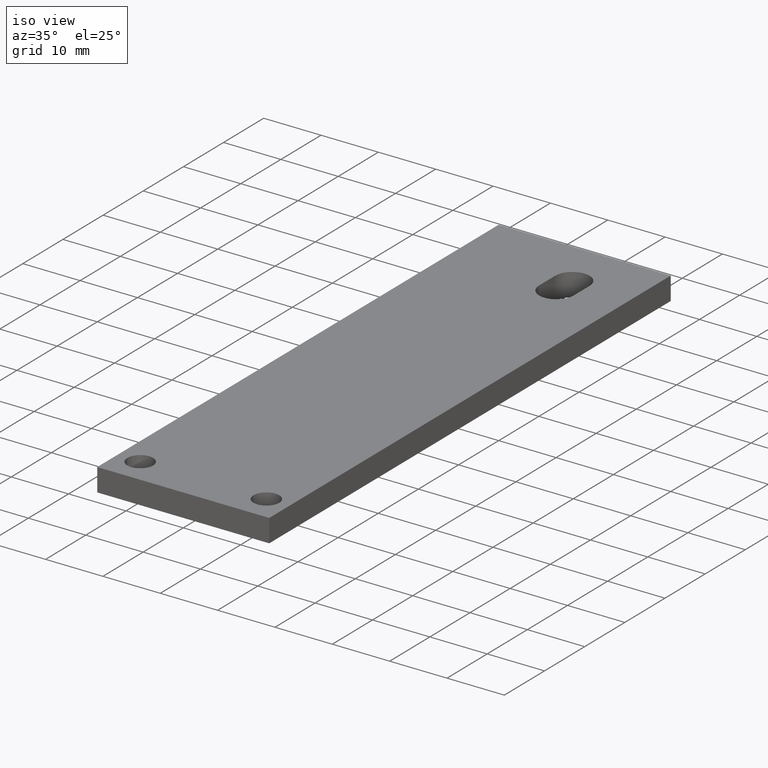
[diagram: clean part render]
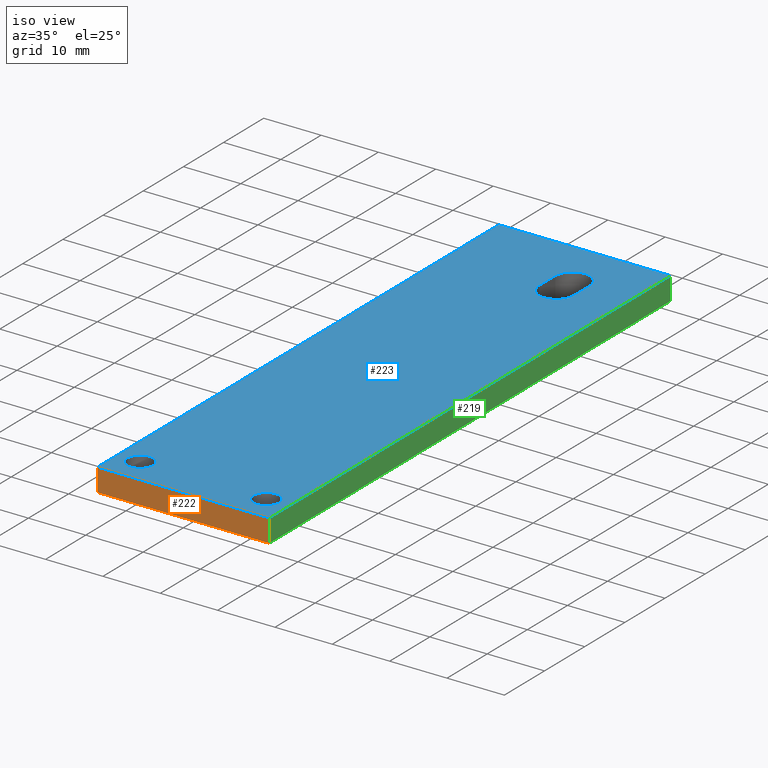
[diagram: same view with three faces highlighted in distinct colors, each labeled with its STEP entity id]
A machine part, iso view with three faces highlighted in distinct colors.
Their STEP definitions:

[orange] entity #222 — the highlighted planar face has unit normal (0, 1, 0).
#38=FACE_OUTER_BOUND('',#50,.T.);
#50=EDGE_LOOP('',(#167,#168,#169,#170));
#67=LINE('',#319,#87);
#75=LINE('',#335,#95);
#77=LINE('',#338,#97);
#78=LINE('',#339,#98);
#87=VECTOR('',#257,4.);
#95=VECTOR('',#269,4.);
#97=VECTOR('',#273,29.9999999998799);
#98=VECTOR('',#274,29.9999999998799);
#107=VERTEX_POINT('',#317);
#108=VERTEX_POINT('',#318);
#113=VERTEX_POINT('',#332);
#114=VERTEX_POINT('',#334);
#127=EDGE_CURVE('',#107,#108,#67,.T.);
#135=EDGE_CURVE('',#114,#113,#75,.T.);
#137=EDGE_CURVE('',#113,#108,#77,.T.);
#138=EDGE_CURVE('',#114,#107,#78,.T.);
#167=ORIENTED_EDGE('',*,*,#135,.T.);
#168=ORIENTED_EDGE('',*,*,#137,.T.);
#169=ORIENTED_EDGE('',*,*,#127,.F.);
#170=ORIENTED_EDGE('',*,*,#138,.F.);
#214=PLANE('',#236);
#222=ADVANCED_FACE('',(#38),#214,.F.);
#236=AXIS2_PLACEMENT_3D('',#337,#271,#272);
#257=DIRECTION('',(0.,0.,-1.));
#269=DIRECTION('',(0.,0.,-1.));
#271=DIRECTION('center_axis',(0.,1.,0.));
#272=DIRECTION('ref_axis',(0.,0.,1.));
#273=DIRECTION('',(1.,0.,0.));
#274=DIRECTION('',(1.,0.,0.));
#317=CARTESIAN_POINT('',(14.99999999994,-99.9999999996007,4.));
#318=CARTESIAN_POINT('',(14.99999999994,-99.9999999996007,0.));
#319=CARTESIAN_POINT('',(14.99999999994,-99.9999999996007,4.));
#332=CARTESIAN_POINT('',(-14.99999999994,-99.9999999996007,0.));
#334=CARTESIAN_POINT('',(-14.99999999994,-99.9999999996007,4.));
#335=CARTESIAN_POINT('',(-14.99999999994,-99.9999999996007,4.));
#337=CARTESIAN_POINT('Origin',(-14.99999999994,-99.9999999996007,4.));
#338=CARTESIAN_POINT('',(-14.99999999994,-99.9999999996007,0.));
#339=CARTESIAN_POINT('',(-14.99999999994,-99.9999999996007,4.));

[blue] entity #223 — the highlighted planar face has unit normal (0, 0, 1).
#19=FACE_BOUND('',#52,.T.);
#20=FACE_BOUND('',#53,.T.);
#21=FACE_BOUND('',#54,.T.);
#27=CIRCLE('',#238,2.99999999998818);
#28=CIRCLE('',#239,2.99999999998818);
#29=CIRCLE('',#240,2.25);
#30=CIRCLE('',#241,2.25);
#39=FACE_OUTER_BOUND('',#51,.T.);
#51=EDGE_LOOP('',(#171,#172,#173,#174));
#52=EDGE_LOOP('',(#175,#176,#177,#178));
#53=EDGE_LOOP('',(#179));
#54=EDGE_LOOP('',(#180));
#70=LINE('',#324,#90);
#73=LINE('',#330,#93);
#76=LINE('',#336,#96);
#78=LINE('',#339,#98);
#79=LINE('',#343,#99);
#80=LINE('',#347,#100);
#90=VECTOR('',#260,99.9999999996007);
#93=VECTOR('',#265,29.9999999998799);
#96=VECTOR('',#270,99.9999999996007);
#98=VECTOR('',#274,29.9999999998799);
#99=VECTOR('',#277,3.99999999998362);
#100=VECTOR('',#280,3.99999999998362);
#107=VERTEX_POINT('',#317);
#110=VERTEX_POINT('',#322);
#112=VERTEX_POINT('',#328);
#114=VERTEX_POINT('',#334);
#115=VERTEX_POINT('',#341);
#116=VERTEX_POINT('',#342);
#117=VERTEX_POINT('',#344);
#118=VERTEX_POINT('',#346);
#119=VERTEX_POINT('',#349);
#120=VERTEX_POINT('',#351);
#130=EDGE_CURVE('',#107,#110,#70,.T.);
#133=EDGE_CURVE('',#110,#112,#73,.T.);
#136=EDGE_CURVE('',#112,#114,#76,.T.);
#138=EDGE_CURVE('',#114,#107,#78,.T.);
#139=EDGE_CURVE('',#115,#116,#79,.T.);
#140=EDGE_CURVE('',#117,#116,#27,.T.);
#141=EDGE_CURVE('',#118,#117,#80,.T.);
#142=EDGE_CURVE('',#115,#118,#28,.T.);
#143=EDGE_CURVE('',#119,#119,#29,.T.);
#144=EDGE_CURVE('',#120,#120,#30,.T.);
#171=ORIENTED_EDGE('',*,*,#130,.T.);
#172=ORIENTED_EDGE('',*,*,#133,.T.);
#173=ORIENTED_EDGE('',*,*,#136,.T.);
#174=ORIENTED_EDGE('',*,*,#138,.T.);
#175=ORIENTED_EDGE('',*,*,#139,.T.);
#176=ORIENTED_EDGE('',*,*,#140,.F.);
#177=ORIENTED_EDGE('',*,*,#141,.F.);
#178=ORIENTED_EDGE('',*,*,#142,.F.);
#179=ORIENTED_EDGE('',*,*,#143,.F.);
#180=ORIENTED_EDGE('',*,*,#144,.F.);
#215=PLANE('',#237);
#223=ADVANCED_FACE('',(#39,#19,#20,#21),#215,.T.);
#237=AXIS2_PLACEMENT_3D('',#340,#275,#276);
#238=AXIS2_PLACEMENT_3D('',#345,#278,#279);
#239=AXIS2_PLACEMENT_3D('',#348,#281,#282);
#240=AXIS2_PLACEMENT_3D('',#350,#283,#284);
#241=AXIS2_PLACEMENT_3D('',#352,#285,#286);
#260=DIRECTION('',(0.,1.,0.));
#265=DIRECTION('',(-1.,0.,0.));
#270=DIRECTION('',(0.,-1.,0.));
#274=DIRECTION('',(1.,0.,0.));
#275=DIRECTION('center_axis',(0.,0.,1.));
#276=DIRECTION('ref_axis',(1.,0.,0.));
#277=DIRECTION('',(0.,1.,0.));
#278=DIRECTION('center_axis',(0.,0.,1.));
#279=DIRECTION('ref_axis',(1.,0.,0.));
#280=DIRECTION('',(0.,1.,0.));
#281=DIRECTION('center_axis',(0.,0.,1.));
#282=DIRECTION('ref_axis',(1.,0.,0.));
#283=DIRECTION('center_axis',(0.,0.,1.));
#284=DIRECTION('ref_axis',(1.,0.,0.));
#285=DIRECTION('center_axis',(0.,0.,1.));
#286=DIRECTION('ref_axis',(1.,0.,0.));
#317=CARTESIAN_POINT('',(14.99999999994,-99.9999999996007,4.));
#322=CARTESIAN_POINT('',(14.99999999994,0.,4.));
#324=CARTESIAN_POINT('',(14.99999999994,-99.9999999996007,4.));
#328=CARTESIAN_POINT('',(-14.99999999994,0.,4.));
#330=CARTESIAN_POINT('',(14.99999999994,0.,4.));
#334=CARTESIAN_POINT('',(-14.99999999994,-99.9999999996007,4.));
#336=CARTESIAN_POINT('',(-14.99999999994,0.,4.));
#339=CARTESIAN_POINT('',(-14.99999999994,-99.9999999996007,4.));
#340=CARTESIAN_POINT('Origin',(-18.0000517800536,-110.000051800419,4.));
#341=CARTESIAN_POINT('',(1.49999999999363,-13.4999999999463,4.));
#342=CARTESIAN_POINT('',(1.49999999999363,-9.49999999996271,4.));
#343=CARTESIAN_POINT('',(1.49999999999363,-13.4999999999463,4.));
#344=CARTESIAN_POINT('',(7.49999999996999,-9.49999999996271,4.));
#345=CARTESIAN_POINT('Origin',(4.49999999998181,-9.49999999996271,4.));
#346=CARTESIAN_POINT('',(7.49999999996999,-13.4999999999463,4.));
#347=CARTESIAN_POINT('',(7.49999999996999,-13.4999999999463,4.));
#348=CARTESIAN_POINT('Origin',(4.49999999998181,-13.4999999999463,4.));
#349=CARTESIAN_POINT('',(-13.2499999999559,-94.9999999996207,4.));
#350=CARTESIAN_POINT('Origin',(-10.9999999999559,-94.9999999996207,4.));
#351=CARTESIAN_POINT('',(8.74999999995589,-94.9999999996207,4.));
#352=CARTESIAN_POINT('Origin',(10.9999999999559,-94.9999999996207,4.));

[green] entity #219 — the highlighted planar face has unit normal (-1, 0, 0).
#35=FACE_OUTER_BOUND('',#47,.T.);
#47=EDGE_LOOP('',(#155,#156,#157,#158));
#67=LINE('',#319,#87);
#68=LINE('',#321,#88);
#69=LINE('',#323,#89);
#70=LINE('',#324,#90);
#87=VECTOR('',#257,4.);
#88=VECTOR('',#258,99.9999999996007);
#89=VECTOR('',#259,4.);
#90=VECTOR('',#260,99.9999999996007);
#107=VERTEX_POINT('',#317);
#108=VERTEX_POINT('',#318);
#109=VERTEX_POINT('',#320);
#110=VERTEX_POINT('',#322);
#127=EDGE_CURVE('',#107,#108,#67,.T.);
#128=EDGE_CURVE('',#108,#109,#68,.T.);
#129=EDGE_CURVE('',#110,#109,#69,.T.);
#130=EDGE_CURVE('',#107,#110,#70,.T.);
#155=ORIENTED_EDGE('',*,*,#127,.T.);
#156=ORIENTED_EDGE('',*,*,#128,.T.);
#157=ORIENTED_EDGE('',*,*,#129,.F.);
#158=ORIENTED_EDGE('',*,*,#130,.F.);
#211=PLANE('',#233);
#219=ADVANCED_FACE('',(#35),#211,.F.);
#233=AXIS2_PLACEMENT_3D('',#316,#255,#256);
#255=DIRECTION('center_axis',(-1.,0.,0.));
#256=DIRECTION('ref_axis',(0.,0.,1.));
#257=DIRECTION('',(0.,0.,-1.));
#258=DIRECTION('',(0.,1.,0.));
#259=DIRECTION('',(0.,0.,-1.));
#260=DIRECTION('',(0.,1.,0.));
#316=CARTESIAN_POINT('Origin',(14.99999999994,-99.9999999996007,4.));
#317=CARTESIAN_POINT('',(14.99999999994,-99.9999999996007,4.));
#318=CARTESIAN_POINT('',(14.99999999994,-99.9999999996007,0.));
#319=CARTESIAN_POINT('',(14.99999999994,-99.9999999996007,4.));
#320=CARTESIAN_POINT('',(14.99999999994,0.,0.));
#321=CARTESIAN_POINT('',(14.99999999994,-99.9999999996007,0.));
#322=CARTESIAN_POINT('',(14.99999999994,0.,4.));
#323=CARTESIAN_POINT('',(14.99999999994,0.,4.));
#324=CARTESIAN_POINT('',(14.99999999994,-99.9999999996007,4.));